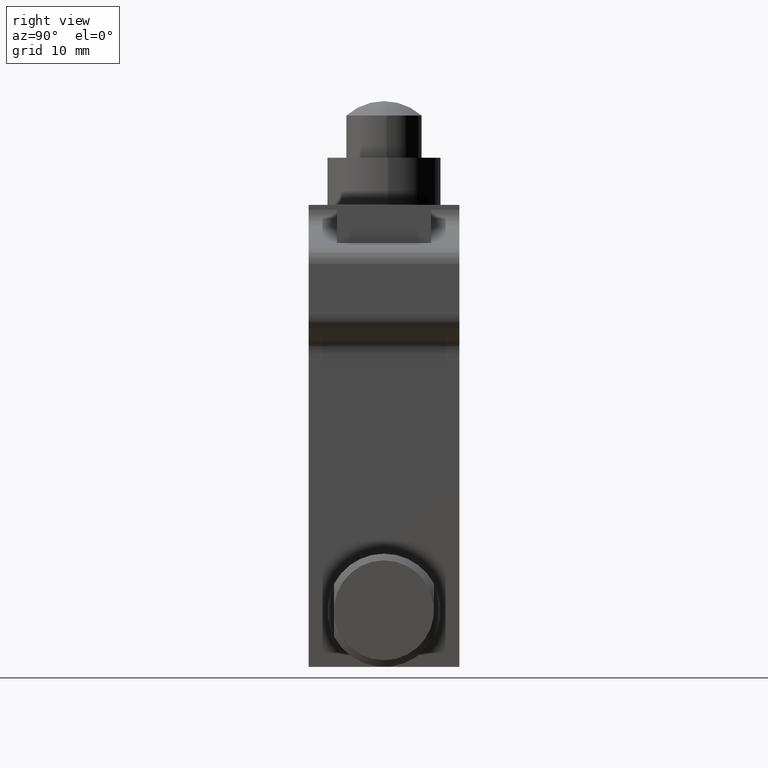
[diagram: clean part render]
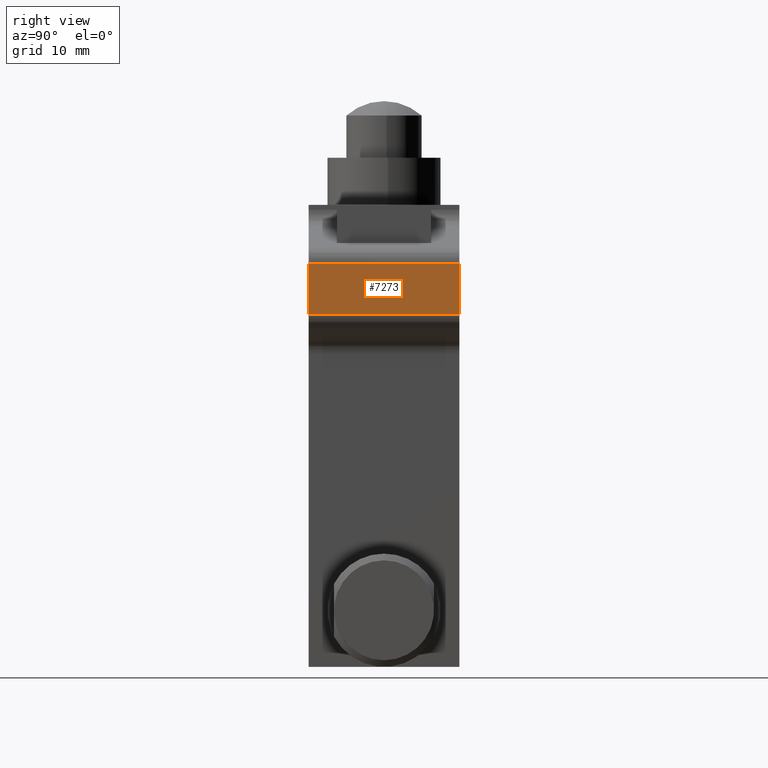
[diagram: same view with one face highlighted and labeled with its STEP entity id]
A machine part, right view. The second image highlights one B-rep face of the part: STEP entity #7273.
In plain terms, the highlighted planar face has unit normal (1, 0, 0).
Its self-contained STEP definition (entity closure, byte-faithful):
#289 = DIRECTION ( 'NONE',  ( 0.0000000000000000000, 0.0000000000000000000, 1.000000000000000000 ) ) ;
#438 = DIRECTION ( 'NONE',  ( 0.0000000000000000000, -1.000000000000000000, 0.0000000000000000000 ) ) ;
#540 = VERTEX_POINT ( 'NONE', #6609 ) ;
#597 = EDGE_CURVE ( 'NONE', #2310, #2988, #2373, .T. ) ;
#629 = DIRECTION ( 'NONE',  ( 0.0000000000000000000, 0.0000000000000000000, -1.000000000000000000 ) ) ;
#656 = AXIS2_PLACEMENT_3D ( 'NONE', #5764, #3894, #2073 ) ;
#662 = CARTESIAN_POINT ( 'NONE',  ( 0.6889763779527560139, -2.797412204724409697E-16, 0.1081432223586718394 ) ) ;
#768 = EDGE_CURVE ( 'NONE', #5889, #2310, #3431, .T. ) ;
#953 = EDGE_CURVE ( 'NONE', #2988, #540, #2550, .T. ) ;
#961 = FACE_OUTER_BOUND ( 'NONE', #1207, .T. ) ;
#1011 = ORIENTED_EDGE ( 'NONE', *, *, #4036, .F. ) ;
#1207 = EDGE_LOOP ( 'NONE', ( #5532, #4323, #1011, #6464 ) ) ;
#2073 = DIRECTION ( 'NONE',  ( 0.0000000000000000000, 0.0000000000000000000, -1.000000000000000000 ) ) ;
#2310 = VERTEX_POINT ( 'NONE', #7289 ) ;
#2373 = LINE ( 'NONE', #6668, #3165 ) ;
#2550 = LINE ( 'NONE', #5884, #6161 ) ;
#2988 = VERTEX_POINT ( 'NONE', #4956 ) ;
#3006 = CARTESIAN_POINT ( 'NONE',  ( 0.6889763779527560139, -0.6299212598425196763, 0.1081432223586718394 ) ) ;
#3165 = VECTOR ( 'NONE', #438, 39.37007874015748143 ) ;
#3431 = LINE ( 'NONE', #662, #5402 ) ;
#3894 = DIRECTION ( 'NONE',  ( 1.000000000000000000, 0.0000000000000000000, 0.0000000000000000000 ) ) ;
#4036 = EDGE_CURVE ( 'NONE', #540, #5889, #6244, .T. ) ;
#4323 = ORIENTED_EDGE ( 'NONE', *, *, #768, .F. ) ;
#4956 = CARTESIAN_POINT ( 'NONE',  ( 0.6889763779527560139, -0.6299212598425196763, -0.1032115305218035406 ) ) ;
#5402 = VECTOR ( 'NONE', #629, 39.37007874015748143 ) ;
#5437 = CARTESIAN_POINT ( 'NONE',  ( 0.6889763779527560139, -2.797412204724409697E-16, 0.1081432223586718394 ) ) ;
#5532 = ORIENTED_EDGE ( 'NONE', *, *, #597, .F. ) ;
#5570 = VECTOR ( 'NONE', #7417, 39.37007874015748143 ) ;
#5764 = CARTESIAN_POINT ( 'NONE',  ( 0.6889763779527560139, -2.797412204724409697E-16, 0.002465845918434106474 ) ) ;
#5884 = CARTESIAN_POINT ( 'NONE',  ( 0.6889763779527560139, -0.6299212598425196763, -0.1032115305218035406 ) ) ;
#5889 = VERTEX_POINT ( 'NONE', #5437 ) ;
#6161 = VECTOR ( 'NONE', #289, 39.37007874015748143 ) ;
#6244 = LINE ( 'NONE', #3006, #5570 ) ;
#6464 = ORIENTED_EDGE ( 'NONE', *, *, #953, .F. ) ;
#6609 = CARTESIAN_POINT ( 'NONE',  ( 0.6889763779527560139, -0.6299212598425196763, 0.1081432223586718394 ) ) ;
#6668 = CARTESIAN_POINT ( 'NONE',  ( 0.6889763779527560139, -2.797412204724409697E-16, -0.1032115305218035406 ) ) ;
#7273 = ADVANCED_FACE ( 'NONE', ( #961 ), #7591, .T. ) ;
#7289 = CARTESIAN_POINT ( 'NONE',  ( 0.6889763779527560139, -2.797412204724409697E-16, -0.1032115305218035406 ) ) ;
#7417 = DIRECTION ( 'NONE',  ( 0.0000000000000000000, 1.000000000000000000, 0.0000000000000000000 ) ) ;
#7591 = PLANE ( 'NONE',  #656 ) ;